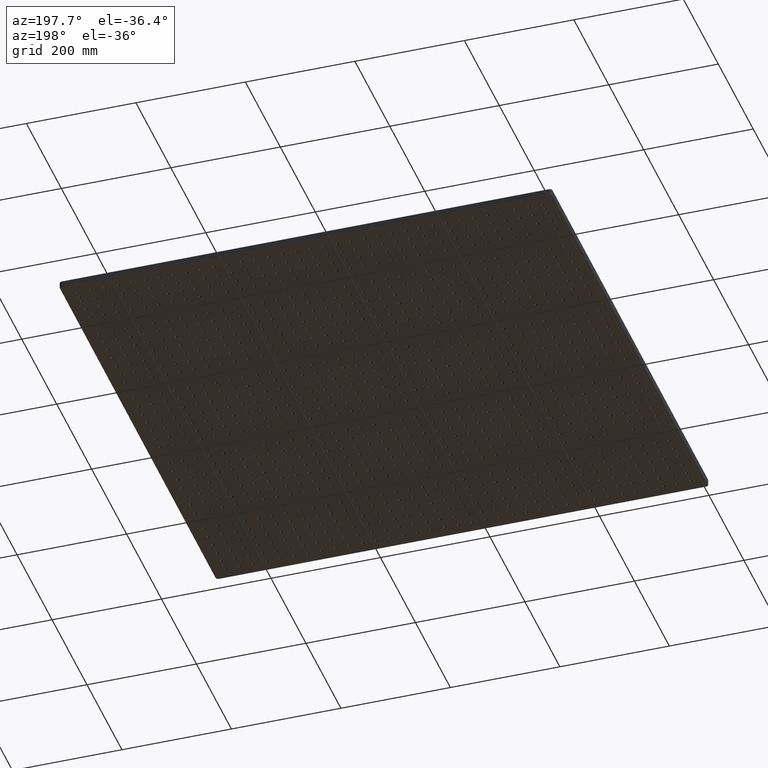
[diagram: clean part render]
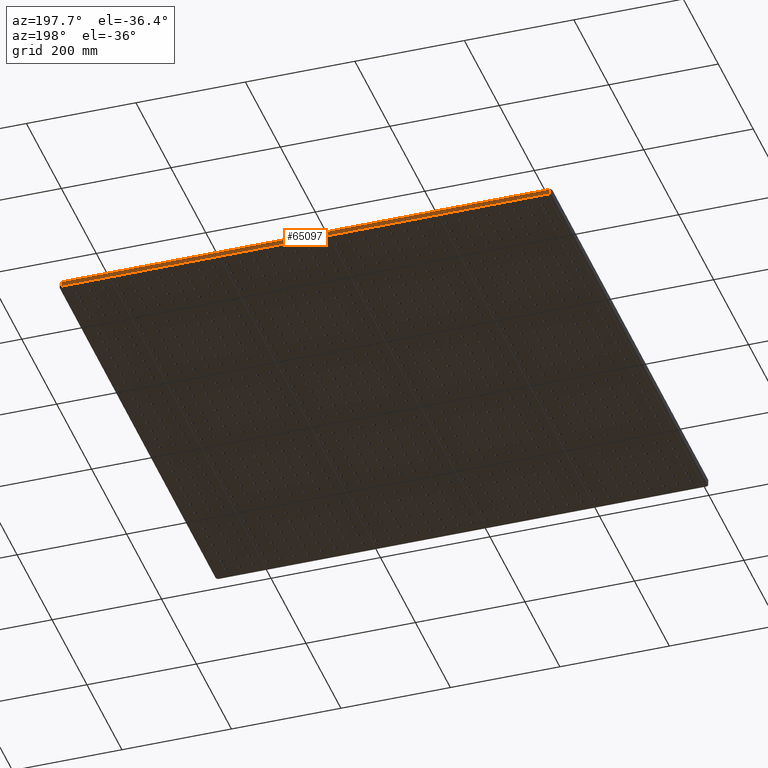
[diagram: same view with one face highlighted and labeled with its STEP entity id]
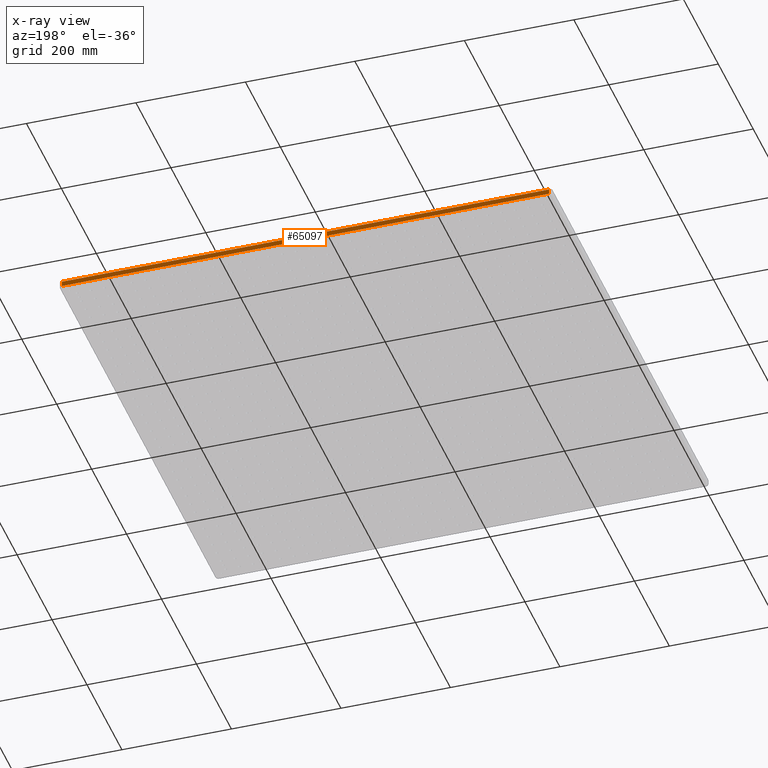
[diagram: x-ray of the same camera — body ghosted, the highlighted face saturated]
A machine part, auxiliary view. The second image highlights one B-rep face of the part: STEP entity #65097.
The next image is the same camera in x-ray: the body ghosted, the highlighted face saturated — about 0% of this face is hidden behind the body in this view.
In plain terms, the highlighted planar face has unit normal (0, 1, 0).
Its self-contained STEP definition (entity closure, byte-faithful):
#3408 = CARTESIAN_POINT ( 'NONE',  ( 895.0000000000000000, 900.0000000000000000, -2.000000000000000000 ) ) ;
#4153 = DIRECTION ( 'NONE',  ( -0.0000000000000000000, 0.0000000000000000000, -1.000000000000000000 ) ) ;
#9753 = ORIENTED_EDGE ( 'NONE', *, *, #80782, .T. ) ;
#11996 = DIRECTION ( 'NONE',  ( 1.000000000000000000, -0.0000000000000000000, 0.0000000000000000000 ) ) ;
#13589 = CARTESIAN_POINT ( 'NONE',  ( 895.0000000000000000, 900.0000000000000000, -11.00000000000000000 ) ) ;
#13991 = CARTESIAN_POINT ( 'NONE',  ( 4.999999999999998200, 900.0000000000000000, -11.00000000000000000 ) ) ;
#16934 = VERTEX_POINT ( 'NONE', #13991 ) ;
#20292 = VERTEX_POINT ( 'NONE', #13589 ) ;
#20614 = LINE ( 'NONE', #47417, #26138 ) ;
#21854 = LINE ( 'NONE', #75412, #80851 ) ;
#25676 = DIRECTION ( 'NONE',  ( -1.000000000000000000, 0.0000000000000000000, 0.0000000000000000000 ) ) ;
#26138 = VECTOR ( 'NONE', #11996, 1000.000000000000000 ) ;
#26291 = VECTOR ( 'NONE', #50158, 1000.000000000000000 ) ;
#29117 = CARTESIAN_POINT ( 'NONE',  ( 0.0000000000000000000, 900.0000000000000000, -13.00000000000000000 ) ) ;
#30031 = AXIS2_PLACEMENT_3D ( 'NONE', #29117, #92200, #34952 ) ;
#34952 = DIRECTION ( 'NONE',  ( 0.0000000000000000000, -0.0000000000000000000, 1.000000000000000000 ) ) ;
#40134 = VERTEX_POINT ( 'NONE', #3408 ) ;
#40670 = VECTOR ( 'NONE', #4153, 1000.000000000000000 ) ;
#40801 = CARTESIAN_POINT ( 'NONE',  ( 895.0000000000000000, 900.0000000000000000, -13.00000000000000000 ) ) ;
#47417 = CARTESIAN_POINT ( 'NONE',  ( 895.0000000000000000, 900.0000000000000000, -2.000000000000000000 ) ) ;
#49682 = VERTEX_POINT ( 'NONE', #82995 ) ;
#49722 = FACE_OUTER_BOUND ( 'NONE', #60215, .T. ) ;
#50158 = DIRECTION ( 'NONE',  ( 0.0000000000000000000, -0.0000000000000000000, 1.000000000000000000 ) ) ;
#56478 = ORIENTED_EDGE ( 'NONE', *, *, #81564, .T. ) ;
#59637 = LINE ( 'NONE', #40801, #40670 ) ;
#60215 = EDGE_LOOP ( 'NONE', ( #56478, #83128, #9753, #74778 ) ) ;
#64550 = PLANE ( 'NONE',  #30031 ) ;
#65097 = ADVANCED_FACE ( 'NONE', ( #49722 ), #64550, .T. ) ;
#66992 = EDGE_CURVE ( 'NONE', #20292, #16934, #21854, .T. ) ;
#67460 = LINE ( 'NONE', #85587, #26291 ) ;
#67718 = EDGE_CURVE ( 'NONE', #49682, #40134, #20614, .T. ) ;
#74778 = ORIENTED_EDGE ( 'NONE', *, *, #67718, .T. ) ;
#75412 = CARTESIAN_POINT ( 'NONE',  ( 0.0000000000000000000, 900.0000000000000000, -11.00000000000000000 ) ) ;
#80782 = EDGE_CURVE ( 'NONE', #16934, #49682, #67460, .T. ) ;
#80851 = VECTOR ( 'NONE', #25676, 1000.000000000000000 ) ;
#81564 = EDGE_CURVE ( 'NONE', #40134, #20292, #59637, .T. ) ;
#82995 = CARTESIAN_POINT ( 'NONE',  ( 4.999999999999998200, 900.0000000000000000, -2.000000000000000000 ) ) ;
#83128 = ORIENTED_EDGE ( 'NONE', *, *, #66992, .T. ) ;
#85587 = CARTESIAN_POINT ( 'NONE',  ( 4.999999999999998200, 900.0000000000000000, -13.00000000000000000 ) ) ;
#92200 = DIRECTION ( 'NONE',  ( 0.0000000000000000000, 1.000000000000000000, 0.0000000000000000000 ) ) ;